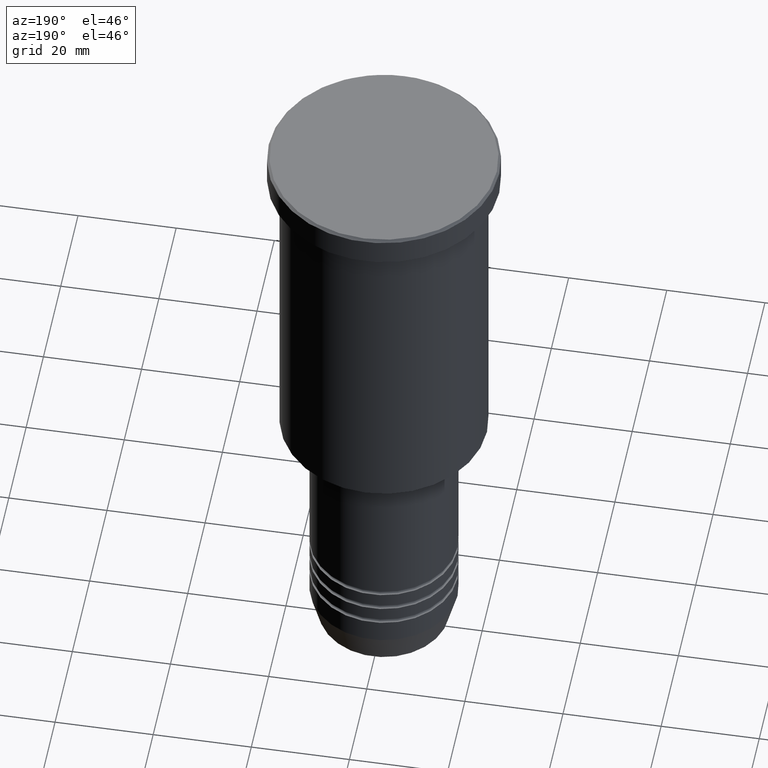
[diagram: clean part render]
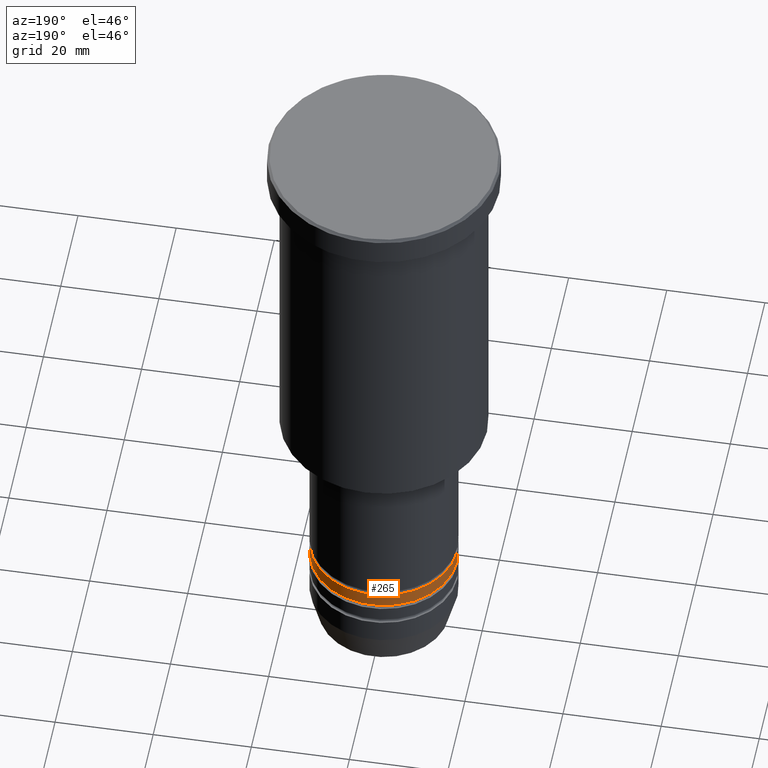
[diagram: same view with one face highlighted and labeled with its STEP entity id]
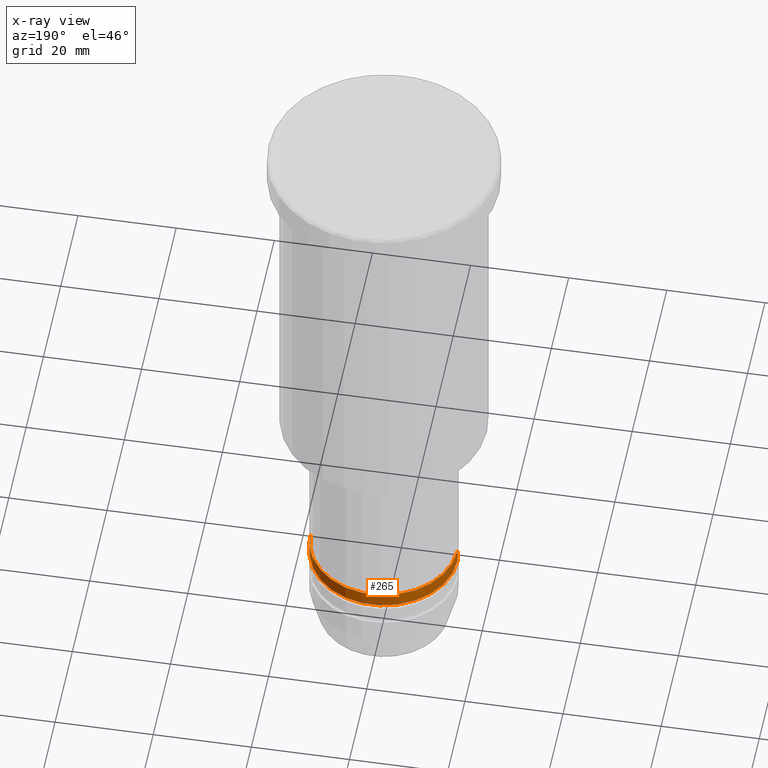
[diagram: x-ray of the same camera — body ghosted, the highlighted face saturated]
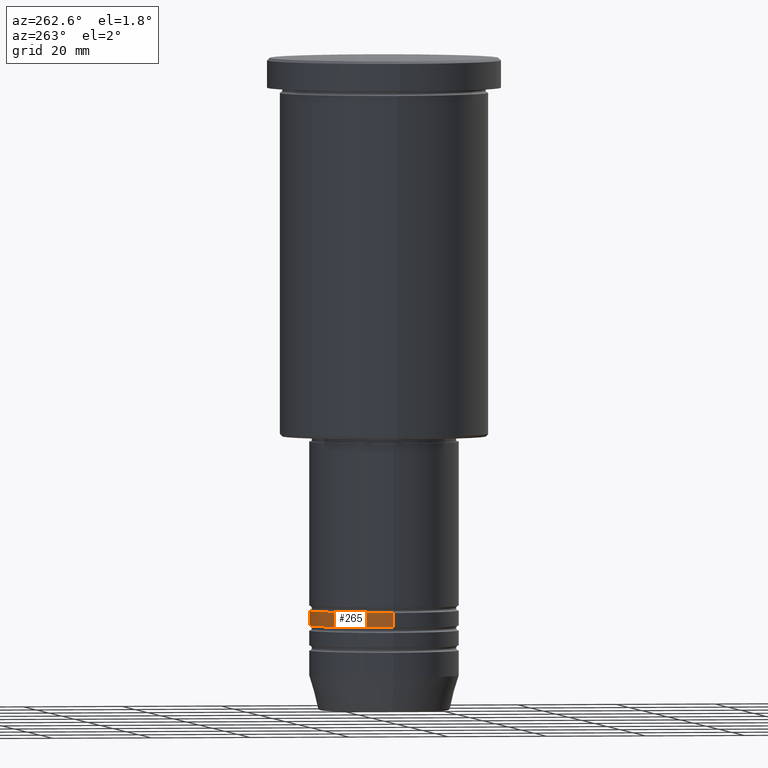
[diagram: same view with one face highlighted and labeled with its STEP entity id]
A machine part, auxiliary view. The second image highlights one B-rep face of the part: STEP entity #265.
The next image is the same camera in x-ray: the body ghosted, the highlighted face saturated — about 0% of this face is hidden behind the body in this view.
A second angle (auxiliary view) of the same face is appended — the face is thin or edge-on in the first view.
In plain terms, the highlighted cylindrical surface (partial cylindrical patch) has radius 15 mm, axis along (-0, -0, 1).
Its self-contained STEP definition (entity closure, byte-faithful):
#29 = EDGE_LOOP ( 'NONE', ( #646, #446, #1033, #790 ) ) ;
#44 = LINE ( 'NONE', #974, #1048 ) ;
#57 = VERTEX_POINT ( 'NONE', #282 ) ;
#103 = VERTEX_POINT ( 'NONE', #1171 ) ;
#129 = AXIS2_PLACEMENT_3D ( 'NONE', #261, #286, #615 ) ;
#145 = CARTESIAN_POINT ( 'NONE',  ( 15.00000000000000000, 0.000000000000000000, -110.9999999999998863 ) ) ;
#187 = DIRECTION ( 'NONE',  ( -0.000000000000000000, -0.000000000000000000, 1.000000000000000000 ) ) ;
#245 = DIRECTION ( 'NONE',  ( 1.000000000000000000, 0.000000000000000000, 0.000000000000000000 ) ) ;
#261 = CARTESIAN_POINT ( 'NONE',  ( 0.000000000000000000, 0.000000000000000000, -110.9999999999998863 ) ) ;
#265 = ADVANCED_FACE ( 'NONE', ( #1074 ), #330, .T. ) ;
#282 = CARTESIAN_POINT ( 'NONE',  ( 15.00000000000000355, 0.000000000000000000, -113.9999999999999005 ) ) ;
#286 = DIRECTION ( 'NONE',  ( -0.000000000000000000, -0.000000000000000000, 1.000000000000000000 ) ) ;
#330 = CYLINDRICAL_SURFACE ( 'NONE', #868, 15.00000000000000178 ) ;
#342 = CIRCLE ( 'NONE', #129, 15.00000000000000000 ) ;
#347 = EDGE_CURVE ( 'NONE', #785, #103, #342, .T. ) ;
#406 = EDGE_CURVE ( 'NONE', #57, #722, #568, .T. ) ;
#446 = ORIENTED_EDGE ( 'NONE', *, *, #737, .T. ) ;
#449 = LINE ( 'NONE', #919, #628 ) ;
#568 = CIRCLE ( 'NONE', #931, 15.00000000000000355 ) ;
#587 = DIRECTION ( 'NONE',  ( -0.000000000000000000, -0.000000000000000000, 1.000000000000000000 ) ) ;
#599 = CARTESIAN_POINT ( 'NONE',  ( 0.000000000000000000, 0.000000000000000000, 0.000000000000000000 ) ) ;
#615 = DIRECTION ( 'NONE',  ( 1.000000000000000000, 0.000000000000000000, 0.000000000000000000 ) ) ;
#628 = VECTOR ( 'NONE', #707, 1000.000000000000000 ) ;
#646 = ORIENTED_EDGE ( 'NONE', *, *, #406, .T. ) ;
#701 = CARTESIAN_POINT ( 'NONE',  ( -15.00000000000000533, 1.836970198721030378E-15, -113.9999999999999005 ) ) ;
#707 = DIRECTION ( 'NONE',  ( -0.000000000000000000, -0.000000000000000000, 1.000000000000000000 ) ) ;
#722 = VERTEX_POINT ( 'NONE', #701 ) ;
#737 = EDGE_CURVE ( 'NONE', #722, #103, #44, .T. ) ;
#785 = VERTEX_POINT ( 'NONE', #145 ) ;
#790 = ORIENTED_EDGE ( 'NONE', *, *, #920, .F. ) ;
#868 = AXIS2_PLACEMENT_3D ( 'NONE', #599, #587, #245 ) ;
#883 = DIRECTION ( 'NONE',  ( -0.000000000000000000, -0.000000000000000000, 1.000000000000000000 ) ) ;
#919 = CARTESIAN_POINT ( 'NONE',  ( 15.00000000000000178, 0.000000000000000000, 0.000000000000000000 ) ) ;
#920 = EDGE_CURVE ( 'NONE', #57, #785, #449, .T. ) ;
#931 = AXIS2_PLACEMENT_3D ( 'NONE', #1079, #187, #996 ) ;
#974 = CARTESIAN_POINT ( 'NONE',  ( -15.00000000000000178, 1.836970198721029983E-15, 0.000000000000000000 ) ) ;
#996 = DIRECTION ( 'NONE',  ( 1.000000000000000000, 0.000000000000000000, 0.000000000000000000 ) ) ;
#1033 = ORIENTED_EDGE ( 'NONE', *, *, #347, .F. ) ;
#1048 = VECTOR ( 'NONE', #883, 1000.000000000000000 ) ;
#1074 = FACE_OUTER_BOUND ( 'NONE', #29, .T. ) ;
#1079 = CARTESIAN_POINT ( 'NONE',  ( 0.000000000000000000, 0.000000000000000000, -113.9999999999999005 ) ) ;
#1171 = CARTESIAN_POINT ( 'NONE',  ( -15.00000000000000000, 1.836970198721029983E-15, -110.9999999999998863 ) ) ;